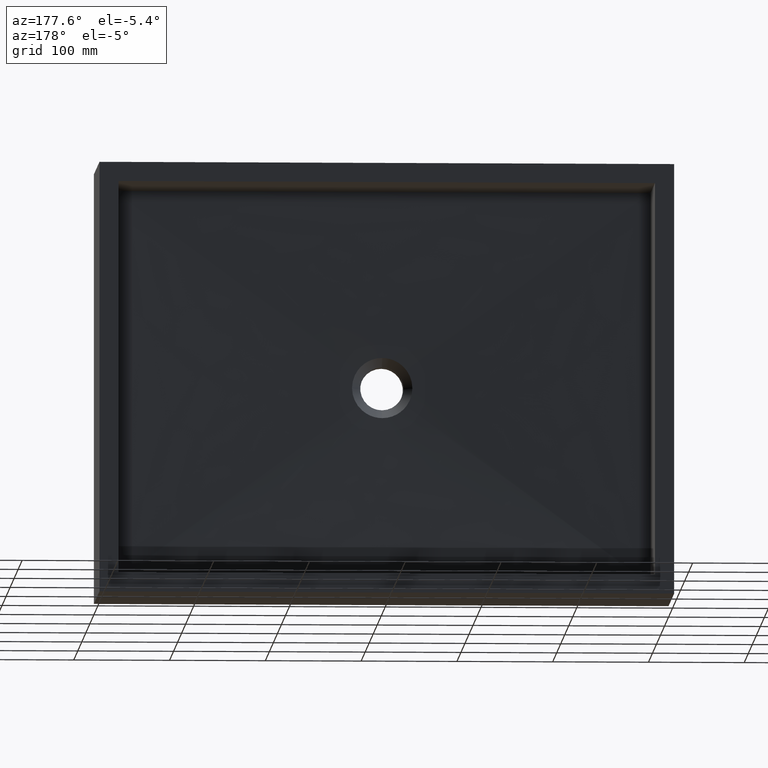
[diagram: clean part render]
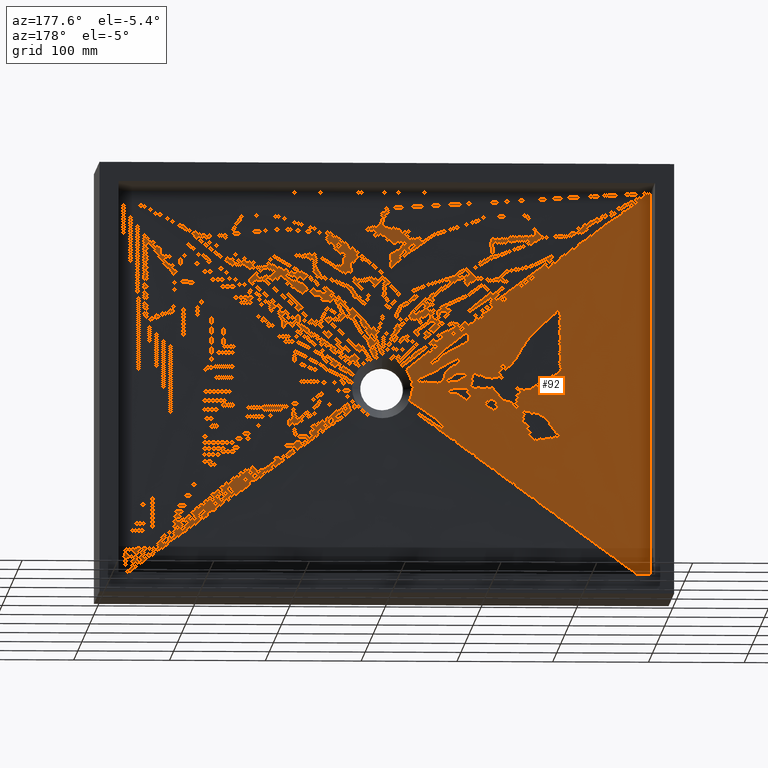
[diagram: same view with one face highlighted and labeled with its STEP entity id]
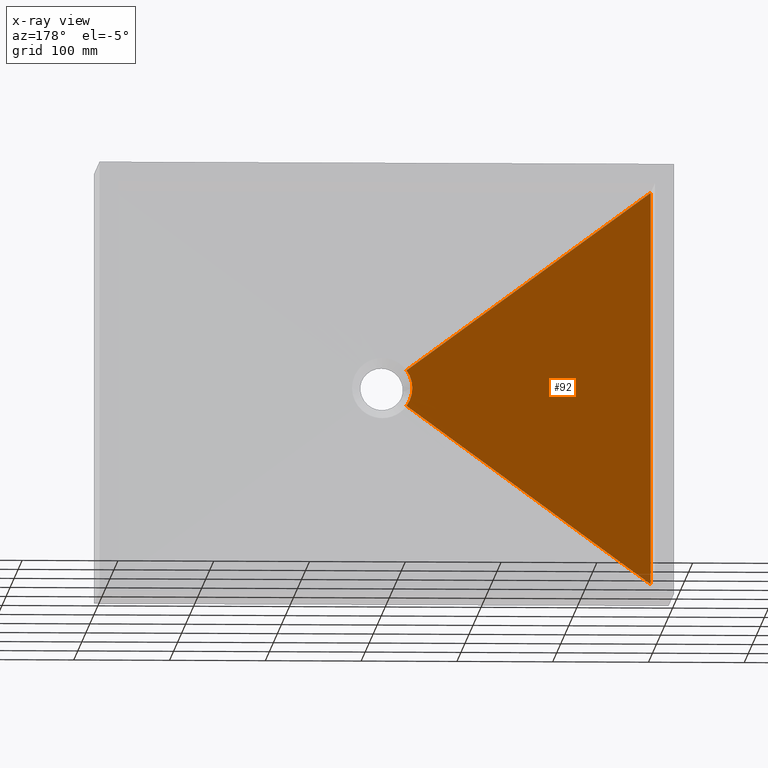
[diagram: x-ray of the same camera — body ghosted, the highlighted face saturated]
A machine part, auxiliary view. The second image highlights one B-rep face of the part: STEP entity #92.
The next image is the same camera in x-ray: the body ghosted, the highlighted face saturated — about 0% of this face is hidden behind the body in this view.
In plain terms, the highlighted face is a freeform B-spline surface patch.
Its self-contained STEP definition (entity closure, byte-faithful):
#3 = CARTESIAN_POINT ( 'NONE',  ( 19.99999999999999600, 30.00000000000000000, -156.6666666666662300 ) ) ;
#12 = CARTESIAN_POINT ( 'NONE',  ( 270.6720595274955500, 25.00000000000000400, -236.6153657705458500 ) ) ;
#16 = VERTEX_POINT ( 'NONE', #599 ) ;
#46 = CARTESIAN_POINT ( 'NONE',  ( 268.5000000000000000, 25.00000000000000400, -226.7164440655774600 ) ) ;
#52 = CARTESIAN_POINT ( 'NONE',  ( 271.3241185199229900, 25.00000000000000000, -211.8635892506865200 ) ) ;
#67 = ORIENTED_EDGE ( 'NONE', *, *, #513, .T. ) ;
#89 = CARTESIAN_POINT ( 'NONE',  ( 269.6073683494622600, 25.00000000000000000, -216.5541278900830400 ) ) ;
#91 = CARTESIAN_POINT ( 'NONE',  ( 20.00000000000000000, 30.00000000000002800, -20.00000000000000000 ) ) ;
#92 = ADVANCED_FACE ( 'NONE', ( #150 ), #1069, .F. ) ;
#110 = VECTOR ( 'NONE', #532, 1000.000000000000000 ) ;
#111 = CARTESIAN_POINT ( 'NONE',  ( 269.6073683494624300, 25.00000000000000700, -233.4458721099169900 ) ) ;
#114 = CARTESIAN_POINT ( 'NONE',  ( 268.5000000000000000, 25.00000000000000400, -226.7164440655774600 ) ) ;
#118 = CARTESIAN_POINT ( 'NONE',  ( 272.8220991108398700, 25.00000000000000400, -241.0072848819872600 ) ) ;
#133 = CARTESIAN_POINT ( 'NONE',  ( 272.8220991108399300, 25.00000000000000400, -208.9927151180129700 ) ) ;
#138 = CARTESIAN_POINT ( 'NONE',  ( 268.5000000000000000, 25.00000000000000000, -225.0000000000000900 ) ) ;
#146 = B_SPLINE_CURVE_WITH_KNOTS ( 'NONE', 3,
 ( #970, #387, #214, #834, #305, #920, #475, #1094, #659, #138 ),
 .UNSPECIFIED., .F., .F.,
 ( 4, 2, 2, 2, 4 ),
 ( 0.0000000000000000000, 0.2500000000000000000, 0.5000000000000000000, 0.7500000000000000000, 1.000000000000000000 ),
 .UNSPECIFIED. ) ;
#147 = CARTESIAN_POINT ( 'NONE',  ( 274.5838211651662800, 25.00000000000000000, -206.3917262102110000 ) ) ;
#150 = FACE_OUTER_BOUND ( 'NONE', #615, .T. ) ;
#173 = CARTESIAN_POINT ( 'NONE',  ( 19.99999999999999600, 30.00000000000000000, -139.5833333333329400 ) ) ;
#193 = CARTESIAN_POINT ( 'NONE',  ( 269.1949665508597600, 25.00000000000000400, -231.7975819554314100 ) ) ;
#195 = CARTESIAN_POINT ( 'NONE',  ( 273.6677686428494700, 25.00000000000000400, -242.3570801007709600 ) ) ;
#211 = CARTESIAN_POINT ( 'NONE',  ( 20.00000000000001800, 30.00000000000002800, -430.0000000000000000 ) ) ;
#214 = CARTESIAN_POINT ( 'NONE',  ( 272.8220991108399300, 25.00000000000000400, -208.9927151180129700 ) ) ;
#229 = CARTESIAN_POINT ( 'NONE',  ( 20.00000000000000000, 30.00000000000000400, -20.00000000000012800 ) ) ;
#239 = CARTESIAN_POINT ( 'NONE',  ( 274.5838211651662800, 25.00000000000000000, -243.6082737897890200 ) ) ;
#244 = CARTESIAN_POINT ( 'NONE',  ( 19.99999999999999600, 30.00000000000000000, -207.9166666666661500 ) ) ;
#263 = EDGE_CURVE ( 'NONE', #827, #16, #278, .T. ) ;
#278 = B_SPLINE_CURVE_WITH_KNOTS ( 'NONE', 3,
 ( #928, #46, #1007, #718, #111, #487, #288, #118, #515, #239 ),
 .UNSPECIFIED., .F., .F.,
 ( 4, 2, 2, 2, 4 ),
 ( 0.0000000000000000000, 0.2500000000000000000, 0.5000000000000000000, 0.7500000000000000000, 1.000000000000000000 ),
 .UNSPECIFIED. ) ;
#282 = CARTESIAN_POINT ( 'NONE',  ( 19.99999999999999600, 30.00000000000000000, -293.3333333333328600 ) ) ;
#288 = CARTESIAN_POINT ( 'NONE',  ( 271.3241185199229300, 25.00000000000000400, -238.1364107493135700 ) ) ;
#294 = CARTESIAN_POINT ( 'NONE',  ( 20.00000000000000000, 30.00000000000000400, -430.0000000000000000 ) ) ;
#296 = VECTOR ( 'NONE', #1126, 1000.000000000000000 ) ;
#304 = CARTESIAN_POINT ( 'NONE',  ( 19.99999999999999600, 30.00000000000000000, -54.16666666666660700 ) ) ;
#305 = CARTESIAN_POINT ( 'NONE',  ( 270.6720595274953200, 25.00000000000000400, -213.3846342294542400 ) ) ;
#327 = CARTESIAN_POINT ( 'NONE',  ( 19.99999999999999600, 30.00000000000000000, -310.4166666666662300 ) ) ;
#329 = CARTESIAN_POINT ( 'NONE',  ( 268.6412129806766400, 25.00000000000000000, -221.5672630569510200 ) ) ;
#339 = VERTEX_POINT ( 'NONE', #91 ) ;
#364 = CARTESIAN_POINT ( 'NONE',  ( 268.6412129806766400, 25.00000000000000700, -228.4327369430490100 ) ) ;
#386 = CARTESIAN_POINT ( 'NONE',  ( 19.99999999999999600, 30.00000000000000000, -105.4166666666664000 ) ) ;
#387 = CARTESIAN_POINT ( 'NONE',  ( 273.6677686428495200, 25.00000000000000400, -207.6429198992291300 ) ) ;
#424 = CARTESIAN_POINT ( 'NONE',  ( 269.1949665508597600, 25.00000000000000700, -218.2024180445686700 ) ) ;
#432 = CARTESIAN_POINT ( 'NONE',  ( 269.6073683494624300, 25.00000000000000700, -233.4458721099169900 ) ) ;
#448 = CARTESIAN_POINT ( 'NONE',  ( 274.5838211651662800, 25.00000000000000000, -243.6082737897890200 ) ) ;
#449 = CARTESIAN_POINT ( 'NONE',  ( 19.99999999999999600, 30.00000000000000000, -259.1666666666661200 ) ) ;
#475 = CARTESIAN_POINT ( 'NONE',  ( 269.1949665508597600, 25.00000000000000700, -218.2024180445686700 ) ) ;
#484 = VERTEX_POINT ( 'NONE', #211 ) ;
#487 = CARTESIAN_POINT ( 'NONE',  ( 270.6720595274955500, 25.00000000000000400, -236.6153657705458500 ) ) ;
#513 = EDGE_CURVE ( 'NONE', #16, #484, #998, .T. ) ;
#515 = CARTESIAN_POINT ( 'NONE',  ( 273.6677686428494700, 25.00000000000000400, -242.3570801007709600 ) ) ;
#532 = DIRECTION ( 'NONE',  ( 2.030895776753327800E-016, -0.0000000000000000000, -1.000000000000000000 ) ) ;
#576 = CARTESIAN_POINT ( 'NONE',  ( 273.6677686428495200, 25.00000000000000400, -207.6429198992291300 ) ) ;
#587 = CARTESIAN_POINT ( 'NONE',  ( 268.5000000000000000, 25.00000000000000000, -225.0000000000000900 ) ) ;
#589 = CARTESIAN_POINT ( 'NONE',  ( 19.99999999999999600, 30.00000000000000000, -190.8333333333328300 ) ) ;
#592 = CARTESIAN_POINT ( 'NONE',  ( 147.2919105825831400, 27.50000000000000400, -336.8041368948945000 ) ) ;
#599 = CARTESIAN_POINT ( 'NONE',  ( 274.5838211651662800, 25.00000000000000000, -243.6082737897890200 ) ) ;
#615 = EDGE_LOOP ( 'NONE', ( #627, #867, #67, #937, #885 ) ) ;
#626 = LINE ( 'NONE', #1060, #110 ) ;
#627 = ORIENTED_EDGE ( 'NONE', *, *, #999, .T. ) ;
#653 = CARTESIAN_POINT ( 'NONE',  ( 19.99999999999999600, 30.00000000000000000, -88.33333333333313000 ) ) ;
#659 = CARTESIAN_POINT ( 'NONE',  ( 268.5000000000000000, 25.00000000000000700, -223.2835559344227100 ) ) ;
#665 = EDGE_CURVE ( 'NONE', #339, #484, #626, .T. ) ;
#666 = CARTESIAN_POINT ( 'NONE',  ( 19.99999999999999600, 30.00000000000000000, -37.08333333333335700 ) ) ;
#668 = LINE ( 'NONE', #831, #846 ) ;
#677 = CARTESIAN_POINT ( 'NONE',  ( 20.00000000000000000, 30.00000000000000000, -242.0833333333328000 ) ) ;
#698 = VERTEX_POINT ( 'NONE', #745 ) ;
#718 = CARTESIAN_POINT ( 'NONE',  ( 269.1949665508597600, 25.00000000000000400, -231.7975819554314100 ) ) ;
#745 = CARTESIAN_POINT ( 'NONE',  ( 274.5838211651662800, 25.00000000000000000, -206.3917262102110000 ) ) ;
#768 = CARTESIAN_POINT ( 'NONE',  ( 268.5000000000000000, 25.00000000000000700, -223.2835559344227100 ) ) ;
#795 = CARTESIAN_POINT ( 'NONE',  ( 19.99999999999999600, 30.00000000000000000, -344.5833333333330300 ) ) ;
#827 = VERTEX_POINT ( 'NONE', #587 ) ;
#831 = CARTESIAN_POINT ( 'NONE',  ( 147.2919105825831400, 27.50000000000000400, -113.1958631051055000 ) ) ;
#834 = CARTESIAN_POINT ( 'NONE',  ( 271.3241185199229900, 25.00000000000000000, -211.8635892506865200 ) ) ;
#846 = VECTOR ( 'NONE', #996, 1000.000000000000000 ) ;
#867 = ORIENTED_EDGE ( 'NONE', *, *, #263, .T. ) ;
#877 = CARTESIAN_POINT ( 'NONE',  ( 19.99999999999999600, 30.00000000000000400, -395.8333333333331400 ) ) ;
#885 = ORIENTED_EDGE ( 'NONE', *, *, #990, .T. ) ;
#889 = CARTESIAN_POINT ( 'NONE',  ( 272.8220991108398700, 25.00000000000000400, -241.0072848819872600 ) ) ;
#920 = CARTESIAN_POINT ( 'NONE',  ( 269.6073683494622600, 25.00000000000000000, -216.5541278900830400 ) ) ;
#928 = CARTESIAN_POINT ( 'NONE',  ( 268.5000000000000000, 25.00000000000000000, -225.0000000000000900 ) ) ;
#937 = ORIENTED_EDGE ( 'NONE', *, *, #665, .F. ) ;
#965 = CARTESIAN_POINT ( 'NONE',  ( 270.6720595274953200, 25.00000000000000400, -213.3846342294542400 ) ) ;
#968 = CARTESIAN_POINT ( 'NONE',  ( 271.3241185199229300, 25.00000000000000400, -238.1364107493135700 ) ) ;
#970 = CARTESIAN_POINT ( 'NONE',  ( 274.5838211651662800, 25.00000000000000000, -206.3917262102110000 ) ) ;
#990 = EDGE_CURVE ( 'NONE', #339, #698, #668, .T. ) ;
#996 = DIRECTION ( 'NONE',  ( 0.8067615303477273500, -0.01584471327862435300, -0.5906646918617289900 ) ) ;
#998 = LINE ( 'NONE', #592, #296 ) ;
#999 = EDGE_CURVE ( 'NONE', #698, #827, #146, .T. ) ;
#1007 = CARTESIAN_POINT ( 'NONE',  ( 268.6412129806766400, 25.00000000000000700, -228.4327369430490100 ) ) ;
#1055 = CARTESIAN_POINT ( 'NONE',  ( 19.99999999999999600, 30.00000000000000000, -361.6666666666663400 ) ) ;
#1060 = CARTESIAN_POINT ( 'NONE',  ( 19.99999999999999600, 30.00000000000000000, -224.9999999999994900 ) ) ;
#1067 = CARTESIAN_POINT ( 'NONE',  ( 19.99999999999999600, 30.00000000000000400, -412.9166666666665700 ) ) ;
#1069 = B_SPLINE_SURFACE_WITH_KNOTS ( 'NONE', 3, 1, ( 
 ( #448, #294 ),
 ( #195, #1067 ),
 ( #889, #877 ),
 ( #968, #1055 ),
 ( #12, #795 ),
 ( #432, #327 ),
 ( #193, #282 ),
 ( #364, #449 ),
 ( #114, #677 ),
 ( #768, #244 ),
 ( #329, #589 ),
 ( #424, #3 ),
 ( #89, #173 ),
 ( #965, #386 ),
 ( #52, #653 ),
 ( #133, #304 ),
 ( #576, #666 ),
 ( #147, #229 ) ),
 .UNSPECIFIED., .F., .F., .F.,
 ( 4, 2, 2, 2, 2, 2, 2, 2, 4 ),
 ( 2, 2 ),
 ( 0.0000000000000000000, 0.1250000000000000000, 0.2500000000000000000, 0.3750000000000000000, 0.5000000000000000000, 0.6250000000000000000, 0.7500000000000000000, 0.8750000000000000000, 1.000000000000000000 ),
 ( 0.0000000000000000000, 1.000000000000000000 ),
 .UNSPECIFIED. ) ;
#1094 = CARTESIAN_POINT ( 'NONE',  ( 268.6412129806766400, 25.00000000000000000, -221.5672630569510500 ) ) ;
#1126 = DIRECTION ( 'NONE',  ( -0.8067615303477274600, 0.01584471327862435600, -0.5906646918617288700 ) ) ;